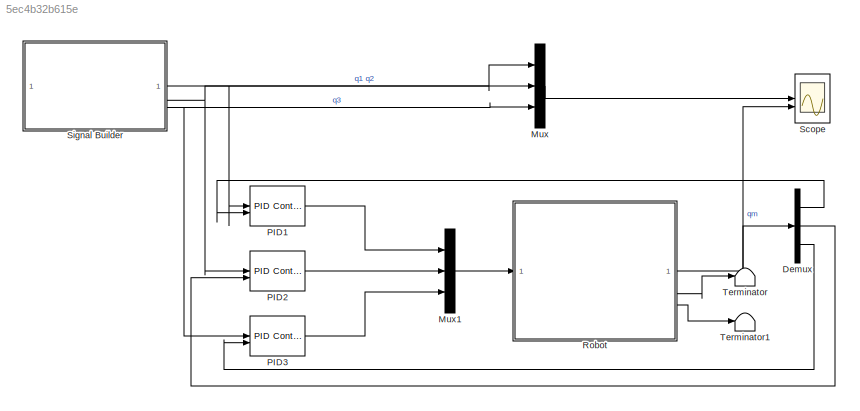
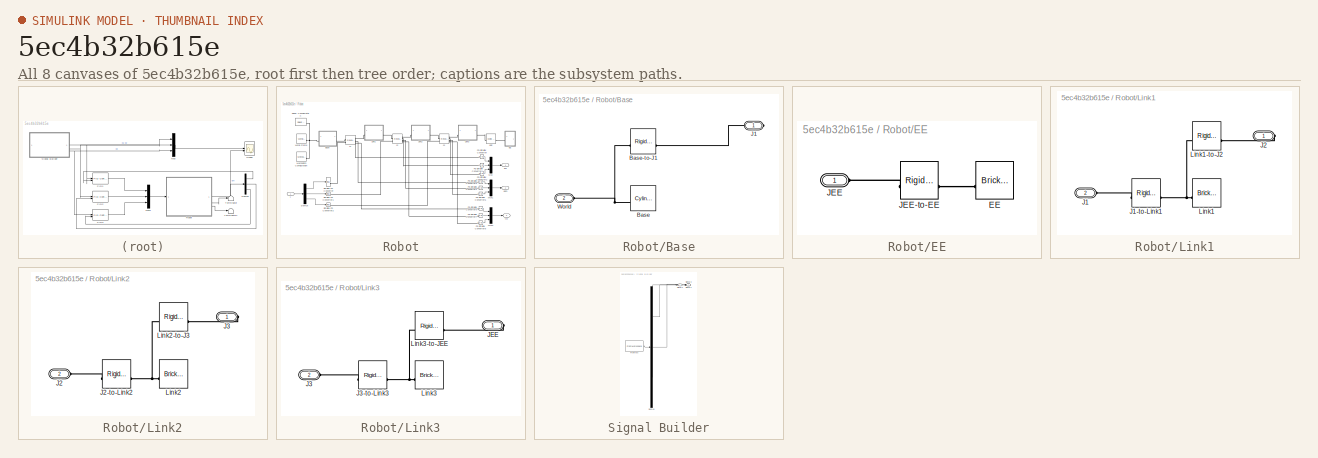
[diagram: thumbnail index - all 8 canvases of the model, root first then tree order]
MODEL slx_5ec4b32b615e
KIND model
CONFIG AbsTol = auto
CONFIG EnableMultiTasking = off
CONFIG FixedStep = auto
CONFIG MaxStep = auto
CONFIG MinStep = auto
CONFIG RelTol = 1e-3
CONFIG SampleTimeConstraint = Unconstrained
CONFIG SolverName = VariableStepAuto
CONFIG StartTime = 0.0
CONFIG StopTime = 10.0
BLOCK [Demux] Demux
  Outputs = 3
BLOCK [Mux] Mux
  DisplayOption = bar
  Inputs = 3
BLOCK [Mux] Mux1
  DisplayOption = bar
  Inputs = 3
BLOCK [Reference] PID1  REF=slpidlib/PID Controller (2DOF)
  LibrarySourceBlock = simulink/Continuous/PID Controller (2DOF)
  SourceBlock = slpidlib/PID Controller (2DOF)
  SourceType = PID 2dof
BLOCK [Reference] PID2  REF=slpidlib/PID Controller (2DOF)
  LibrarySourceBlock = simulink/Continuous/PID Controller (2DOF)
  SourceBlock = slpidlib/PID Controller (2DOF)
  SourceType = PID 2dof
BLOCK [Reference] PID3  REF=slpidlib/PID Controller (2DOF)
  LibrarySourceBlock = simulink/Continuous/PID Controller (2DOF)
  SourceBlock = slpidlib/PID Controller (2DOF)
  SourceType = PID 2dof
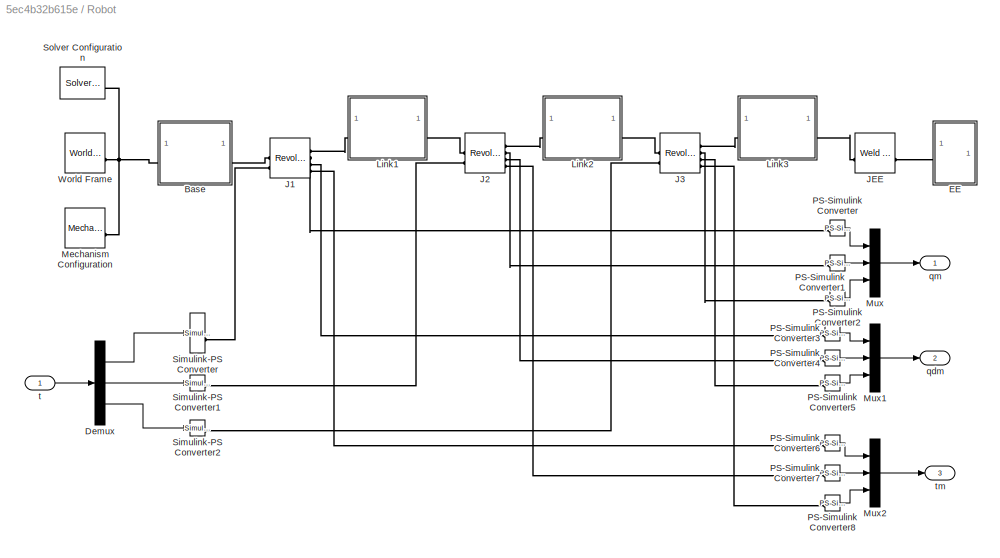
BLOCK [SubSystem] Robot
BLOCK [SubSystem] Robot/Base
BLOCK [Reference] Robot/Base/Base  REF=sm_lib/Body Elements/Cylindrical Solid
  SourceBlock = sm_lib/Body Elements/Cylindrical Solid
  SourceType = Cylindrical Solid
BLOCK [Reference] Robot/Base/Base-to-J1  REF=sm_lib/Frames and
Transforms/Rigid
Transform
  SourceBlock = sm_lib/Frames and\nTransforms/Rigid\nTransform
  SourceType = Rigid\nTransform
BLOCK [PMIOPort] Robot/Base/J1
  Side = Right
BLOCK [PMIOPort] Robot/Base/World
  Port = 2
  Side = Left
BLOCK [Demux] Robot/Demux
  Outputs = 3
BLOCK [SubSystem] Robot/EE
BLOCK [Reference] Robot/EE/EE  REF=sm_lib/Body Elements/Brick Solid
  SourceBlock = sm_lib/Body Elements/Brick Solid
  SourceType = Brick Solid
BLOCK [PMIOPort] Robot/EE/JEE
  Side = Left
BLOCK [Reference] Robot/EE/JEE-to-EE  REF=sm_lib/Frames and
Transforms/Rigid
Transform
  SourceBlock = sm_lib/Frames and\nTransforms/Rigid\nTransform
  SourceType = Rigid\nTransform
BLOCK [Reference] Robot/J1  REF=sm_lib/Joints/Revolute Joint
  SourceBlock = sm_lib/Joints/Revolute Joint
  SourceType = Revolute Joint
BLOCK [Reference] Robot/J2  REF=sm_lib/Joints/Revolute Joint
  SourceBlock = sm_lib/Joints/Revolute Joint
  SourceType = Revolute Joint
BLOCK [Reference] Robot/J3  REF=sm_lib/Joints/Revolute Joint
  SourceBlock = sm_lib/Joints/Revolute Joint
  SourceType = Revolute Joint
BLOCK [Reference] Robot/JEE  REF=sm_lib/Joints/Weld Joint
  SourceBlock = sm_lib/Joints/Weld Joint
  SourceType = Weld Joint
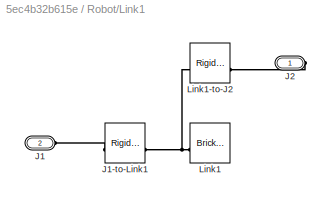
BLOCK [SubSystem] Robot/Link1
BLOCK [PMIOPort] Robot/Link1/J1
  Port = 2
  Side = Left
BLOCK [Reference] Robot/Link1/J1-to-Link1  REF=sm_lib/Frames and
Transforms/Rigid
Transform
  SourceBlock = sm_lib/Frames and\nTransforms/Rigid\nTransform
  SourceType = Rigid\nTransform
BLOCK [PMIOPort] Robot/Link1/J2
  Side = Right
BLOCK [Reference] Robot/Link1/Link1  REF=sm_lib/Body Elements/Brick Solid
  SourceBlock = sm_lib/Body Elements/Brick Solid
  SourceType = Brick Solid
BLOCK [Reference] Robot/Link1/Link1-to-J2  REF=sm_lib/Frames and
Transforms/Rigid
Transform
  SourceBlock = sm_lib/Frames and\nTransforms/Rigid\nTransform
  SourceType = Rigid\nTransform
BLOCK [SubSystem] Robot/Link2
BLOCK [PMIOPort] Robot/Link2/J2
  Port = 2
  Side = Left
BLOCK [Reference] Robot/Link2/J2-to-Link2  REF=sm_lib/Frames and
Transforms/Rigid
Transform
  SourceBlock = sm_lib/Frames and\nTransforms/Rigid\nTransform
  SourceType = Rigid\nTransform
BLOCK [PMIOPort] Robot/Link2/J3
  Side = Right
BLOCK [Reference] Robot/Link2/Link2  REF=sm_lib/Body Elements/Brick Solid
  SourceBlock = sm_lib/Body Elements/Brick Solid
  SourceType = Brick Solid
BLOCK [Reference] Robot/Link2/Link2-to-J3  REF=sm_lib/Frames and
Transforms/Rigid
Transform
  SourceBlock = sm_lib/Frames and\nTransforms/Rigid\nTransform
  SourceType = Rigid\nTransform
BLOCK [SubSystem] Robot/Link3
BLOCK [PMIOPort] Robot/Link3/J3
  Port = 2
  Side = Left
BLOCK [Reference] Robot/Link3/J3-to-Link3  REF=sm_lib/Frames and
Transforms/Rigid
Transform
  SourceBlock = sm_lib/Frames and\nTransforms/Rigid\nTransform
  SourceType = Rigid\nTransform
BLOCK [PMIOPort] Robot/Link3/JEE
  Side = Right
BLOCK [Reference] Robot/Link3/Link3  REF=sm_lib/Body Elements/Brick Solid
  SourceBlock = sm_lib/Body Elements/Brick Solid
  SourceType = Brick Solid
BLOCK [Reference] Robot/Link3/Link3-to-JEE  REF=sm_lib/Frames and
Transforms/Rigid
Transform
  SourceBlock = sm_lib/Frames and\nTransforms/Rigid\nTransform
  SourceType = Rigid\nTransform
BLOCK [Reference] Robot/Mechanism Configuration  REF=sm_lib/Utilities/Mechanism
Configuration
  SourceBlock = sm_lib/Utilities/Mechanism\nConfiguration
  SourceType = Mechanism\nConfiguration
BLOCK [Mux] Robot/Mux
  DisplayOption = bar
  Inputs = 3
BLOCK [Mux] Robot/Mux1
  DisplayOption = bar
  Inputs = 3
BLOCK [Mux] Robot/Mux2
  DisplayOption = bar
  Inputs = 3
BLOCK [Reference] Robot/PS-Simulink Converter  REF=nesl_utility/PS-Simulink
Converter
  SourceBlock = nesl_utility/PS-Simulink\nConverter
  SourceType = PS-Simulink\nConverter
BLOCK [Reference] Robot/PS-Simulink Converter1  REF=nesl_utility/PS-Simulink
Converter
  SourceBlock = nesl_utility/PS-Simulink\nConverter
  SourceType = PS-Simulink\nConverter
BLOCK [Reference] Robot/PS-Simulink Converter2  REF=nesl_utility/PS-Simulink
Converter
  SourceBlock = nesl_utility/PS-Simulink\nConverter
  SourceType = PS-Simulink\nConverter
BLOCK [Reference] Robot/PS-Simulink Converter3  REF=nesl_utility/PS-Simulink
Converter
  SourceBlock = nesl_utility/PS-Simulink\nConverter
  SourceType = PS-Simulink\nConverter
BLOCK [Reference] Robot/PS-Simulink Converter4  REF=nesl_utility/PS-Simulink
Converter
  SourceBlock = nesl_utility/PS-Simulink\nConverter
  SourceType = PS-Simulink\nConverter
BLOCK [Reference] Robot/PS-Simulink Converter5  REF=nesl_utility/PS-Simulink
Converter
  SourceBlock = nesl_utility/PS-Simulink\nConverter
  SourceType = PS-Simulink\nConverter
BLOCK [Reference] Robot/PS-Simulink Converter6  REF=nesl_utility/PS-Simulink
Converter
  SourceBlock = nesl_utility/PS-Simulink\nConverter
  SourceType = PS-Simulink\nConverter
BLOCK [Reference] Robot/PS-Simulink Converter7  REF=nesl_utility/PS-Simulink
Converter
  SourceBlock = nesl_utility/PS-Simulink\nConverter
  SourceType = PS-Simulink\nConverter
BLOCK [Reference] Robot/PS-Simulink Converter8  REF=nesl_utility/PS-Simulink
Converter
  SourceBlock = nesl_utility/PS-Simulink\nConverter
  SourceType = PS-Simulink\nConverter
BLOCK [Reference] Robot/Simulink-PS Converter  REF=nesl_utility/Simulink-PS
Converter
  SourceBlock = nesl_utility/Simulink-PS\nConverter
  SourceType = Simulink-PS\nConverter
BLOCK [Reference] Robot/Simulink-PS Converter1  REF=nesl_utility/Simulink-PS
Converter
  SourceBlock = nesl_utility/Simulink-PS\nConverter
  SourceType = Simulink-PS\nConverter
BLOCK [Reference] Robot/Simulink-PS Converter2  REF=nesl_utility/Simulink-PS
Converter
  SourceBlock = nesl_utility/Simulink-PS\nConverter
  SourceType = Simulink-PS\nConverter
BLOCK [Reference] Robot/Solver Configuration  REF=nesl_utility/Solver
Configuration
  SourceBlock = nesl_utility/Solver\nConfiguration
  SourceType = Solver\nConfiguration
BLOCK [Reference] Robot/World Frame  REF=sm_lib/Frames and
Transforms/World Frame
  SourceBlock = sm_lib/Frames and\nTransforms/World Frame
  SourceType = World Frame
BLOCK [Outport] Robot/qdm
  Port = 2
BLOCK [Outport] Robot/qm
BLOCK [Inport] Robot/t
BLOCK [Outport] Robot/tm
  Port = 3
BLOCK [Scope] Scope
  Floating = off
  NumInputPorts = 2
  ScopeSpecificationString = Simulink.scopes.TimeScopeBlockCfg('CurrentConfiguration', extmgr.ConfigurationSet(extmgr.Configuration('Core','General UI',true),extmgr.Configuration('Core','Source UI',true),extmgr.Configuration('Sources','WiredSimulink',true),extmgr.Configuration('Visuals','Time Domain',true,'SerializedDisplays',{struct('MinYLimReal','-2.75064','MaxYLimReal','4.75575','YLabelReal','','MinYLimMag','0.00000','MaxY...<+2717ch>
BLOCK [SubSystem] Signal Builder
  ClipboardFcn = sigbuilder_block('clipboard');
  CloseFcn = sigbuilder_block('close');
  ContinueFcn = sigbuilder_block('continue');
  CopyFcn = sigbuilder_block('copy');
  DeleteFcn = sigbuilder_block('delete');
  LoadFcn = sigbuilder_block('load');
  MaskHideContents = on
  ModelCloseFcn = sigbuilder_block('modelClose');
  NameChangeFcn = sigbuilder_block('namechange');
  OpenFcn = sigbuilder_block('open',[354 114 550.8 367.2 ]);
  PauseFcn = sigbuilder_block('pause');
  PreSaveFcn = sigbuilder_block('preSave');
  StartFcn = sigbuilder_block('start');
  StopFcn = sigbuilder_block('stop');
  Tag = STV Subsys
BLOCK [Demux] Signal Builder/Demux
  DisplayOption = none
  Outputs = 3
  Tag = STV Demux
BLOCK [FromWorkspace] Signal Builder/FromWs
  Tag = STV FromWs
  VariableName = tuvar
BLOCK [Outport] Signal Builder/Signal 1
  Tag = STV Outport
BLOCK [Outport] Signal Builder/Signal 2
  Port = 2
  Tag = STV Outport
BLOCK [Outport] Signal Builder/Signal 3
  Port = 3
  Tag = STV Outport
BLOCK [Terminator] Terminator
BLOCK [Terminator] Terminator1
LINE Demux:1 -> PID1:2
LINE Demux:2 -> PID2:2
LINE Demux:3 -> PID3:2
LINE Mux1:1 -> Robot:1
LINE Mux:1 -> Scope:1
LINE PID1:1 -> Mux1:1
LINE PID2:1 -> Mux1:2
LINE PID3:1 -> Mux1:3
LINE Robot/Demux:1 -> Robot/Simulink-PS Converter:1
LINE Robot/Demux:2 -> Robot/Simulink-PS Converter1:1
LINE Robot/Demux:3 -> Robot/Simulink-PS Converter2:1
LINE Robot/Mux1:1 -> Robot/qdm:1
LINE Robot/Mux2:1 -> Robot/tm:1
LINE Robot/Mux:1 -> Robot/qm:1
LINE Robot/PS-Simulink Converter1:1 -> Robot/Mux:2
LINE Robot/PS-Simulink Converter2:1 -> Robot/Mux:3
LINE Robot/PS-Simulink Converter3:1 -> Robot/Mux1:1
LINE Robot/PS-Simulink Converter4:1 -> Robot/Mux1:2
LINE Robot/PS-Simulink Converter5:1 -> Robot/Mux1:3
LINE Robot/PS-Simulink Converter6:1 -> Robot/Mux2:1
LINE Robot/PS-Simulink Converter7:1 -> Robot/Mux2:2
LINE Robot/PS-Simulink Converter8:1 -> Robot/Mux2:3
LINE Robot/PS-Simulink Converter:1 -> Robot/Mux:1
LINE Robot/t:1 -> Robot/Demux:1
NET Robot:1 -> Demux:1, Scope:2
LINE Robot:2 -> Terminator:1
LINE Robot:3 -> Terminator1:1
NET Signal Builder:1 -> Mux:1, PID1:1
NET Signal Builder:2 -> Mux:2, PID2:1
NET Signal Builder:3 -> Mux:3, PID3:1
PNET net1: Robot/Base/Base-to-J1:LConn1 -- Robot/Base/Base:RConn1 -- Robot/Base/World:RConn1
PLINE Robot/Base/Base-to-J1:RConn1 -- Robot/Base/J1:RConn1
PNET net2: Robot/Base:LConn1 -- Robot/Mechanism Configuration:RConn1 -- Robot/Solver Configuration:RConn1 -- Robot/World Frame:RConn1
PLINE Robot/Base:RConn1 -- Robot/J1:LConn1
PLINE Robot/EE/EE:RConn1 -- Robot/EE/JEE-to-EE:RConn1
PLINE Robot/EE/JEE-to-EE:LConn1 -- Robot/EE/JEE:RConn1
PLINE Robot/EE:LConn1 -- Robot/JEE:RConn1
PLINE Robot/J1:LConn2 -- Robot/Simulink-PS Converter:RConn1
PLINE Robot/J1:RConn1 -- Robot/Link1:LConn1
PLINE Robot/J1:RConn2 -- Robot/PS-Simulink Converter:LConn1
PLINE Robot/J1:RConn3 -- Robot/PS-Simulink Converter3:LConn1
PLINE Robot/J1:RConn4 -- Robot/PS-Simulink Converter6:LConn1
PLINE Robot/J2:LConn1 -- Robot/Link1:RConn1
PLINE Robot/J2:LConn2 -- Robot/Simulink-PS Converter1:RConn1
PLINE Robot/J2:RConn1 -- Robot/Link2:LConn1
PLINE Robot/J2:RConn2 -- Robot/PS-Simulink Converter1:LConn1
PLINE Robot/J2:RConn3 -- Robot/PS-Simulink Converter4:LConn1
PLINE Robot/J2:RConn4 -- Robot/PS-Simulink Converter7:LConn1
PLINE Robot/J3:LConn1 -- Robot/Link2:RConn1
PLINE Robot/J3:LConn2 -- Robot/Simulink-PS Converter2:RConn1
PLINE Robot/J3:RConn1 -- Robot/Link3:LConn1
PLINE Robot/J3:RConn2 -- Robot/PS-Simulink Converter2:LConn1
PLINE Robot/J3:RConn3 -- Robot/PS-Simulink Converter5:LConn1
PLINE Robot/J3:RConn4 -- Robot/PS-Simulink Converter8:LConn1
PLINE Robot/JEE:LConn1 -- Robot/Link3:RConn1
PLINE Robot/Link1/J1-to-Link1:LConn1 -- Robot/Link1/J1:RConn1
PNET net3: Robot/Link1/J1-to-Link1:RConn1 -- Robot/Link1/Link1-to-J2:LConn1 -- Robot/Link1/Link1:RConn1
PLINE Robot/Link1/J2:RConn1 -- Robot/Link1/Link1-to-J2:RConn1
PLINE Robot/Link2/J2-to-Link2:LConn1 -- Robot/Link2/J2:RConn1
PNET net4: Robot/Link2/J2-to-Link2:RConn1 -- Robot/Link2/Link2-to-J3:LConn1 -- Robot/Link2/Link2:RConn1
PLINE Robot/Link2/J3:RConn1 -- Robot/Link2/Link2-to-J3:RConn1
PLINE Robot/Link3/J3-to-Link3:LConn1 -- Robot/Link3/J3:RConn1
PNET net5: Robot/Link3/J3-to-Link3:RConn1 -- Robot/Link3/Link3-to-JEE:LConn1 -- Robot/Link3/Link3:RConn1
PLINE Robot/Link3/JEE:RConn1 -- Robot/Link3/Link3-to-JEE:RConn1
note: NET lines group one-source signal fan-out (src -> all destinations, sorted); 1:1 wires keep LINE; PNET lines group multi-terminal physical nets as a canonical sorted terminal list (undirected conserving connections); 2-terminal nets keep the pairwise PLINE form
